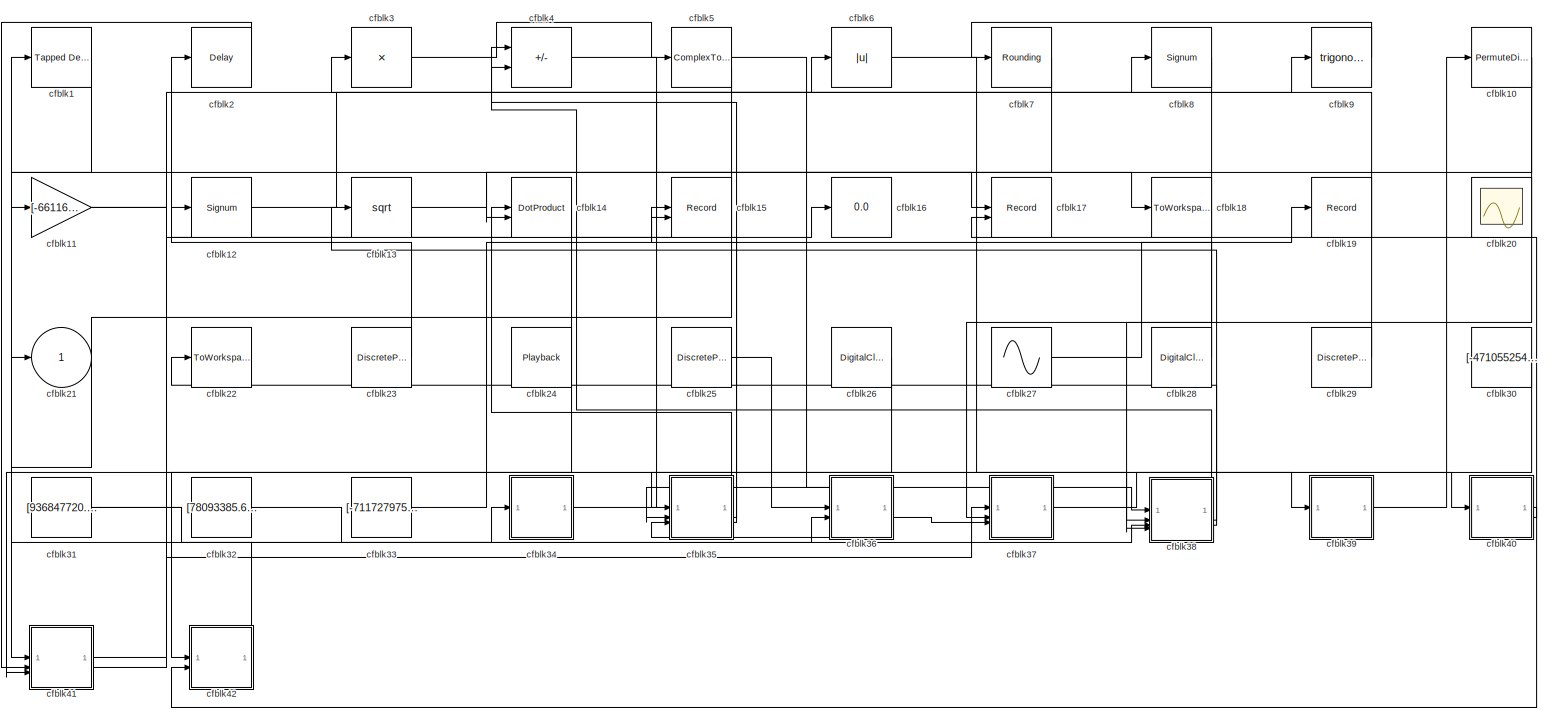
[diagram: root canvas - part 1/1, most of the canvas]
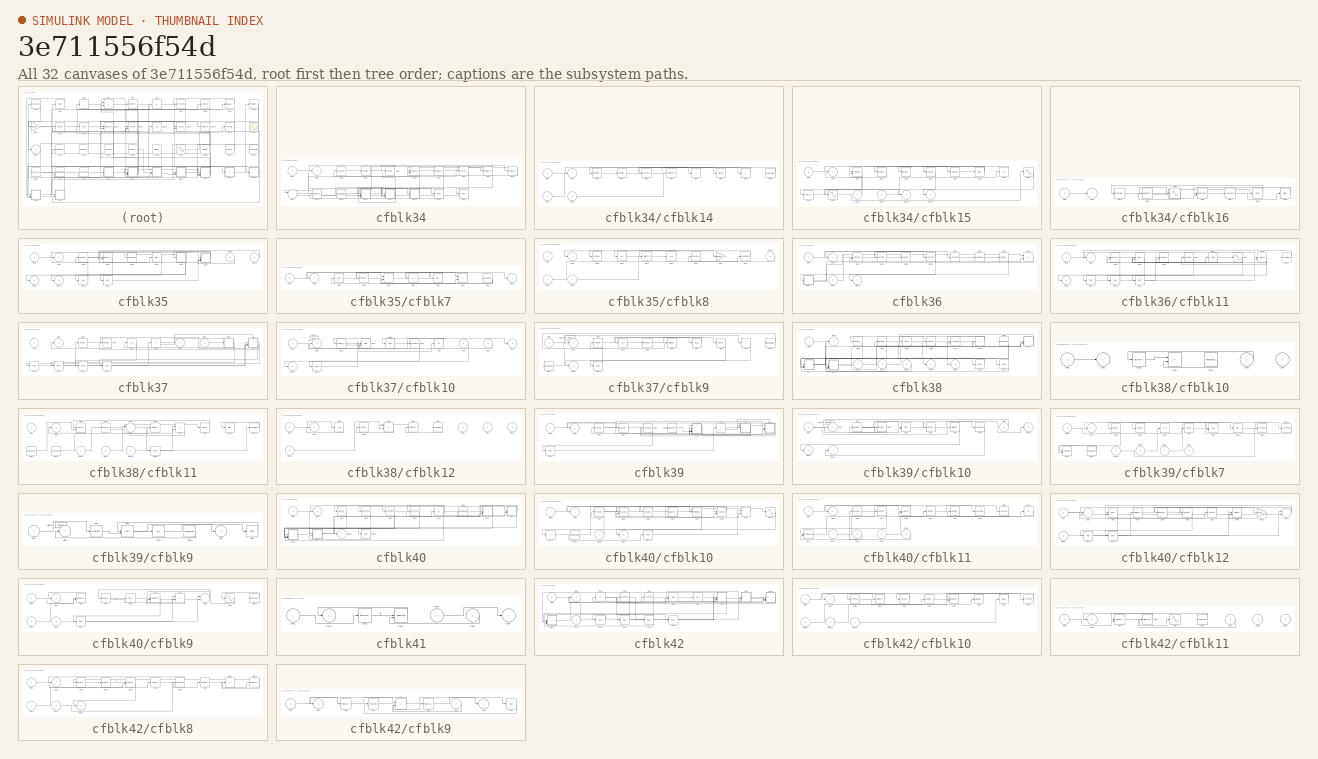
[diagram: thumbnail index - all 32 canvases of the model, root first then tree order]
MODEL slx_3e711556f54d
KIND model
CONFIG AbsTol = auto
CONFIG EnableMultiTasking = off
CONFIG FixedStep = auto
CONFIG MaxStep = auto
CONFIG MinStep = auto
CONFIG RelTol = 1e-3
CONFIG SampleTimeConstraint = Unconstrained
CONFIG SolverName = VariableStepAuto
CONFIG StartTime = 0.0
CONFIG StopTime = 10.0
BLOCK [Reference] cfblk1  REF=simulink/Discrete/Tapped Delay
  SourceBlock = simulink/Discrete/Tapped Delay
  SourceType = Tapped Delay Line
BLOCK [PermuteDimensions] cfblk10
BLOCK [Gain] cfblk11
  Gain = [-661167338.582478]
BLOCK [Signum] cfblk12
BLOCK [Sqrt] cfblk13
BLOCK [DotProduct] cfblk14
  OutDataTypeStr = Inherit: Inherit via internal rule
BLOCK [Record] cfblk15
  CompatibilityTag = XY
  FileSettingsInternal = {"entries":[{"content":{"excelSettings":{"content":{},"type":"Streamout.ExcelSettings"}},"type":"Streamout.FileSettingStorage","uuid":""}],"packageUris":["http:\/\/schema.mathworks.com\/mf0\/streamout_blocks\/R2020a"],"version":"1.0"}  <repeated x3 — deduplicated; at blocks: cfblk15, cfblk17, cfblk19>
  Layout = [1 1]
  SignalsInternal = {"entries":[{"content":{"signals":[{"content":{"blockPath":[],"dimensions":[1],"domain":"","lineColor":"#a2142f","plots":[1],"port":1,"sid":[""],"signalID":9076,"signalName":"cfblk33"},"type":"RecordBlkView.Signal","uuid":""},{"content":{"blockPath":[],"dimensions":[1],"domain":"","lineColor":"#139fff","plots":[1],"port":2,"sid":[""],"signalID":9080,"signalName":"cfblk28"},"type":"RecordBlkView.Si...<+162ch>
  VisualizationBindings = {"xyplotplugin":{"info":[{"series":[{"bindingParametersList":[{"parameter":"X-Axis","signalID":9076,"signalName":"cfblk33"},{"parameter":"Y-Axis","signalID":9080,"signalName":"cfblk28"}],"seriesID":24323}],"subplotID":1}]}}
BLOCK [Display] cfblk16
  Decimation = 1
BLOCK [Record] cfblk17
  CompatibilityTag = XY
  Layout = [1 1]
  SignalsInternal = {"entries":[{"content":{"signals":[{"content":{"blockPath":[],"dimensions":[1,1],"domain":"","lineColor":"#a2142f","plots":[1],"port":1,"sid":[""],"signalID":9064,"signalName":"cfblk13"},"type":"RecordBlkView.Signal","uuid":""},{"content":{"blockPath":[],"dimensions":[1],"domain":"","lineColor":"#139fff","plots":[1],"port":2,"sid":[""],"signalID":9068,"signalName":"cfblk40:2"},"type":"RecordBlkVie...<+166ch>
  VisualizationBindings = {"xyplotplugin":{"info":[{"series":[{"bindingParametersList":[{"parameter":"X-Axis","signalID":9064,"signalName":"cfblk13"},{"parameter":"Y-Axis","signalID":9068,"signalName":"cfblk40:2"}],"seriesID":10880}],"subplotID":1}]}}
BLOCK [ToWorkspace] cfblk18
  FixptAsFi = on
  MaxDataPoints = inf
  SampleTime = -1
  SaveFormat = Timeseries
  VariableName = fnljowx
BLOCK [Record] cfblk19
  SignalsInternal = {"entries":[{"content":{"signals":[{"content":{"blockPath":[],"dimensions":[1],"domain":"","lineColor":"#0072bd","plots":[1],"port":1,"sid":[""],"signalID":9072,"signalName":"cfblk27"},"type":"RecordBlkView.Signal","uuid":""}]},"type":"RecordBlkView.InputSignals","uuid":""}],"packageUris":["http:\/\/schema.mathworks.com\/mf0\/streamout_blocks\/R2020a"],"version":"1.0"}
  VisualizationBindings = {"sparklinesplugin":{"info":[{"bindingParametersList":[],"subplotID":1}]}}
BLOCK [Delay] cfblk2
  InputPortMap = u0
  SampleTime = 1
BLOCK [Scope] cfblk20
  Floating = on
  NumInputPorts = 1
BLOCK [Outport] cfblk21
BLOCK [ToWorkspace] cfblk22
  FixptAsFi = on
  MaxDataPoints = inf
  SampleTime = -1
  SaveFormat = Timeseries
  VariableName = ipofnvf
BLOCK [DiscretePulseGenerator] cfblk23
  Amplitude = [489892371.667250]
  Period = [76053043.640460]
  PhaseDelay = [5.000000]
  PulseType = Time based
  PulseWidth = 5
BLOCK [Playback] cfblk24
  NumPorts = 0
  PartName = d68867df-50f9-4361-9956-652af25b3d46
BLOCK [DiscretePulseGenerator] cfblk25
  Amplitude = [-460172725.140259]
  Period = [3062453.616618]
  PhaseDelay = [9.000000]
  PulseType = Time based
  PulseWidth = 5
BLOCK [DigitalClock] cfblk26
BLOCK [Sin] cfblk27
  Amplitude = [935071433.101170]
  Bias = [937723856.864569]
  SampleTime = 0
BLOCK [DigitalClock] cfblk28
BLOCK [DiscretePulseGenerator] cfblk29
  Amplitude = [587874793.420624]
  Period = [75210868.274375]
  PhaseDelay = [2.000000]
  PulseType = Time based
  PulseWidth = 5
BLOCK [Product] cfblk3
  Inputs = *
BLOCK [Constant] cfblk30
  SampleTime = 1
  Value = [-471055254.722410]
BLOCK [Constant] cfblk31
  SampleTime = 1
  Value = [936847720.148109]
BLOCK [Constant] cfblk32
  SampleTime = 1
  Value = [78093385.671961]
BLOCK [Constant] cfblk33
  SampleTime = 1
  Value = [-711727975.051186]
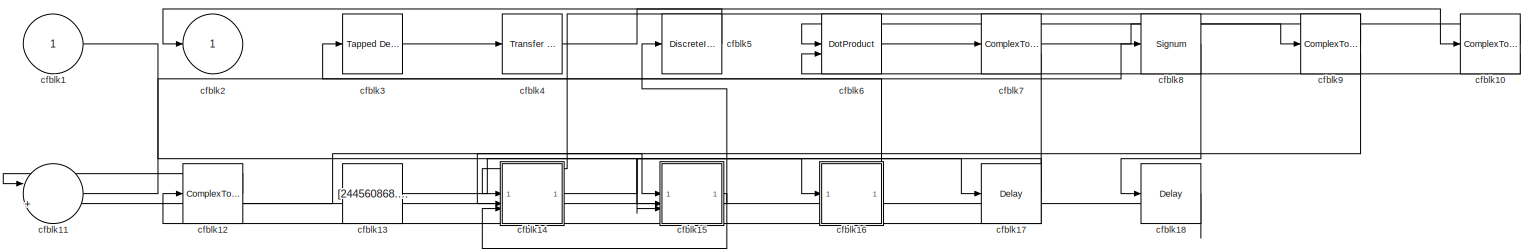
[diagram: cfblk34 - part 1/1, most of the canvas]
BLOCK [SubSystem] cfblk34
BLOCK [Inport] cfblk34/cfblk1
BLOCK [ComplexToMagnitudeAngle] cfblk34/cfblk10
BLOCK [Sum] cfblk34/cfblk11
  Inputs = |++
BLOCK [ComplexToMagnitudeAngle] cfblk34/cfblk12
BLOCK [Constant] cfblk34/cfblk13
  SampleTime = 1
  Value = [244560868.257482]
BLOCK [SubSystem] cfblk34/cfblk14
BLOCK [Inport] cfblk34/cfblk14/cfblk1
BLOCK [Constant] cfblk34/cfblk14/cfblk10
  SampleTime = 1
  Value = [221604053.392651]
BLOCK [Inport] cfblk34/cfblk14/cfblk11
  Port = 2
BLOCK [Inport] cfblk34/cfblk14/cfblk12
  Port = 3
BLOCK [Outport] cfblk34/cfblk14/cfblk2
BLOCK [DiscreteStateSpace] cfblk34/cfblk14/cfblk3
BLOCK [DiscreteIntegrator] cfblk34/cfblk14/cfblk4
  ICPrevOutput = DiscIntNeverNeededParam
  ICPrevScaledInput = DiscIntNeverNeededParam
  InitialConditionSetting = Auto
BLOCK [Squeeze] cfblk34/cfblk14/cfblk5
BLOCK [ComplexToRealImag] cfblk34/cfblk14/cfblk6
BLOCK [Sum] cfblk34/cfblk14/cfblk7
  IconShape = rectangular
  Inputs = +
BLOCK [MinMax] cfblk34/cfblk14/cfblk8
BLOCK [Sum] cfblk34/cfblk14/cfblk9
  IconShape = rectangular
  Inputs = +
BLOCK [SubSystem] cfblk34/cfblk15
BLOCK [Inport] cfblk34/cfblk15/cfblk1
BLOCK [Sin] cfblk34/cfblk15/cfblk10
  SampleTime = 0
  TimeSource = Use external signal
BLOCK [Signum] cfblk34/cfblk15/cfblk11
BLOCK [Sin] cfblk34/cfblk15/cfblk12
  SampleTime = 0
  TimeSource = Use external signal
BLOCK [Inport] cfblk34/cfblk15/cfblk13
  Port = 2
BLOCK [Inport] cfblk34/cfblk15/cfblk14
  Port = 3
BLOCK [Outport] cfblk34/cfblk15/cfblk15
  Port = 2
BLOCK [Outport] cfblk34/cfblk15/cfblk16
  Port = 3
BLOCK [Outport] cfblk34/cfblk15/cfblk2
BLOCK [Reference] cfblk34/cfblk15/cfblk3  REF=slpidlib/PID Controller (2DOF)
  LibrarySourceBlock = simulink/Discrete/Discrete PID Controller (2DOF)
  SourceBlock = slpidlib/PID Controller (2DOF)
  SourceType = PID 2dof
BLOCK [DiscreteFir] cfblk34/cfblk15/cfblk4
  InputPortMap = u0
  OutputPortMap = o0
  SampleTime = 1
BLOCK [DiscreteZeroPole] cfblk34/cfblk15/cfblk5
  Gain = 1
  Poles = [0 0.5]
BLOCK [Squeeze] cfblk34/cfblk15/cfblk6
BLOCK [Math] cfblk34/cfblk15/cfblk7
  Operator = square
BLOCK [Bias] cfblk34/cfblk15/cfblk8
  Bias = [-424058401.541355]
  SaturateOnIntegerOverflow = off
BLOCK [Abs] cfblk34/cfblk15/cfblk9
  SaturateOnIntegerOverflow = off
BLOCK [SubSystem] cfblk34/cfblk16
BLOCK [Inport] cfblk34/cfblk16/cfblk1
BLOCK [Outport] cfblk34/cfblk16/cfblk2
BLOCK [DiscreteIntegrator] cfblk34/cfblk16/cfblk3
  ICPrevOutput = DiscIntNeverNeededParam
  ICPrevScaledInput = DiscIntNeverNeededParam
  InitialConditionSetting = Auto
BLOCK [ComplexToMagnitudeAngle] cfblk34/cfblk16/cfblk4
BLOCK [Sin] cfblk34/cfblk16/cfblk5
  SampleTime = 0
  TimeSource = Use external signal
BLOCK [DotProduct] cfblk34/cfblk16/cfblk6
  OutDataTypeStr = Inherit: Inherit via internal rule
BLOCK [Reshape] cfblk34/cfblk16/cfblk7
BLOCK [Delay] cfblk34/cfblk16/cfblk8
  InputPortMap = u0
  SampleTime = 1
BLOCK [Delay] cfblk34/cfblk16/cfblk9
  InputPortMap = u0
  SampleTime = 1
BLOCK [Delay] cfblk34/cfblk17
  InputPortMap = u0
  SampleTime = 1
BLOCK [Delay] cfblk34/cfblk18
  InputPortMap = u0
  SampleTime = 1
BLOCK [Outport] cfblk34/cfblk2
BLOCK [Reference] cfblk34/cfblk3  REF=simulink/Discrete/Tapped Delay
  SourceBlock = simulink/Discrete/Tapped Delay
  SourceType = Tapped Delay Line
BLOCK [Reference] cfblk34/cfblk4  REF=simulink/Discrete/Transfer Fcn
First Order
  SourceBlock = simulink/Discrete/Transfer Fcn\nFirst Order
  SourceType = First Order Transfer Fcn
BLOCK [DiscreteIntegrator] cfblk34/cfblk5
  ICPrevOutput = DiscIntNeverNeededParam
  ICPrevScaledInput = DiscIntNeverNeededParam
  InitialConditionSetting = Auto
BLOCK [DotProduct] cfblk34/cfblk6
  OutDataTypeStr = Inherit: Inherit via internal rule
BLOCK [ComplexToMagnitudeAngle] cfblk34/cfblk7
BLOCK [Signum] cfblk34/cfblk8
BLOCK [ComplexToMagnitudeAngle] cfblk34/cfblk9
BLOCK [SubSystem] cfblk35
BLOCK [Inport] cfblk35/cfblk1
BLOCK [Inport] cfblk35/cfblk10
  Port = 3
BLOCK [Outport] cfblk35/cfblk11
  Port = 2
BLOCK [Outport] cfblk35/cfblk12
  Port = 3
BLOCK [Delay] cfblk35/cfblk13
  InputPortMap = u0
  SampleTime = 1
BLOCK [Delay] cfblk35/cfblk14
  InputPortMap = u0
  SampleTime = 1
BLOCK [Outport] cfblk35/cfblk2
BLOCK [DiscreteFilter] cfblk35/cfblk3
  InputPortMap = u0
  SampleTime = 1
BLOCK [Reference] cfblk35/cfblk4  REF=simulink/Math
Operations/MinMax
Running
Resettable
  SourceBlock = simulink/Math\nOperations/MinMax\nRunning\nResettable
  SourceType = MinMax Running Resettable
BLOCK [UnaryMinus] cfblk35/cfblk5
BLOCK [Bias] cfblk35/cfblk6
  Bias = [386240983.709337]
  SaturateOnIntegerOverflow = off
BLOCK [SubSystem] cfblk35/cfblk7
BLOCK [Inport] cfblk35/cfblk7/cfblk1
BLOCK [Outport] cfblk35/cfblk7/cfblk10
  Port = 2
BLOCK [Outport] cfblk35/cfblk7/cfblk2
BLOCK [Delay] cfblk35/cfblk7/cfblk3
  InputPortMap = u0
  SampleTime = 1
BLOCK [Reference] cfblk35/cfblk7/cfblk4  REF=slpidlib/PID Controller
  LibrarySourceBlock = simulink/Discrete/Discrete PID Controller
  SourceBlock = slpidlib/PID Controller
  SourceType = PID 1dof
BLOCK [Product] cfblk35/cfblk7/cfblk5
  Inputs = **
BLOCK [Abs] cfblk35/cfblk7/cfblk6
  SaturateOnIntegerOverflow = off
BLOCK [Sqrt] cfblk35/cfblk7/cfblk7
BLOCK [Product] cfblk35/cfblk7/cfblk8
BLOCK [Constant] cfblk35/cfblk7/cfblk9
  SampleTime = 1
  Value = [44037636.757688]
BLOCK [SubSystem] cfblk35/cfblk8
BLOCK [Inport] cfblk35/cfblk8/cfblk1
BLOCK [Inport] cfblk35/cfblk8/cfblk10
  Port = 2
BLOCK [Inport] cfblk35/cfblk8/cfblk11
  Port = 3
BLOCK [Inport] cfblk35/cfblk8/cfblk12
  Port = 4
BLOCK [Outport] cfblk35/cfblk8/cfblk2
BLOCK [DiscreteIntegrator] cfblk35/cfblk8/cfblk3
  ICPrevOutput = DiscIntNeverNeededParam
  ICPrevScaledInput = DiscIntNeverNeededParam
  InitialConditionSetting = Auto
BLOCK [UnitDelay] cfblk35/cfblk8/cfblk4
  HasFrameUpgradeWarning = on
BLOCK [Reference] cfblk35/cfblk8/cfblk5  REF=simulink/Discrete/Difference
  SourceBlock = simulink/Discrete/Difference
  SourceType = Difference
BLOCK [UnitDelay] cfblk35/cfblk8/cfblk6
  HasFrameUpgradeWarning = on
BLOCK [Reference] cfblk35/cfblk8/cfblk7  REF=simulink/Discrete/Tapped Delay
  SourceBlock = simulink/Discrete/Tapped Delay
  SourceType = Tapped Delay Line
BLOCK [Gain] cfblk35/cfblk8/cfblk8
  Gain = [392964915.501462]
BLOCK [UnaryMinus] cfblk35/cfblk8/cfblk9
BLOCK [Inport] cfblk35/cfblk9
  Port = 2
BLOCK [SubSystem] cfblk36
BLOCK [Inport] cfblk36/cfblk1
BLOCK [Sum] cfblk36/cfblk10
  IconShape = rectangular
  Inputs = +-
BLOCK [SubSystem] cfblk36/cfblk11
BLOCK [Inport] cfblk36/cfblk11/cfblk1
BLOCK [Constant] cfblk36/cfblk11/cfblk10
  SampleTime = 1
  Value = [117344583.950169]
BLOCK [Outport] cfblk36/cfblk11/cfblk11
  Port = 2
BLOCK [Delay] cfblk36/cfblk11/cfblk12
  InputPortMap = u0
  SampleTime = 1
BLOCK [Delay] cfblk36/cfblk11/cfblk13
  InputPortMap = u0
  SampleTime = 1
BLOCK [Delay] cfblk36/cfblk11/cfblk14
  InputPortMap = u0
  SampleTime = 1
BLOCK [Outport] cfblk36/cfblk11/cfblk2
BLOCK [PropagationDelay] cfblk36/cfblk11/cfblk3
  SampleTime = 1
BLOCK [Delay] cfblk36/cfblk11/cfblk4
  DelayLengthSource = Input port
  InputPortMap = u0,p1
  SampleTime = 1
BLOCK [PropagationDelay] cfblk36/cfblk11/cfblk5
  SampleTime = 1
BLOCK [DiscreteZeroPole] cfblk36/cfblk11/cfblk6
  Gain = 1
  Poles = [0 0.5]
BLOCK [Sqrt] cfblk36/cfblk11/cfblk7
  AlgorithmType = Newton-Raphson
  Operator = rSqrt
BLOCK [Sin] cfblk36/cfblk11/cfblk8
  SampleTime = 0
  TimeSource = Use external signal
BLOCK [MinMax] cfblk36/cfblk11/cfblk9
  Function = max
  Inputs = 2
BLOCK [Inport] cfblk36/cfblk12
  Port = 2
BLOCK [Outport] cfblk36/cfblk13
  Port = 2
BLOCK [Outport] cfblk36/cfblk2
BLOCK [Reference] cfblk36/cfblk3  REF=slpidlib/PID Controller (2DOF)
  LibrarySourceBlock = simulink/Discrete/Discrete PID Controller (2DOF)
  SourceBlock = slpidlib/PID Controller (2DOF)
  SourceType = PID 2dof
BLOCK [DiscreteIntegrator] cfblk36/cfblk4
  ICPrevOutput = DiscIntNeverNeededParam
  ICPrevScaledInput = DiscIntNeverNeededParam
  InitialConditionSetting = Auto
BLOCK [DiscreteIntegrator] cfblk36/cfblk5
  ICPrevOutput = DiscIntNeverNeededParam
  ICPrevScaledInput = DiscIntNeverNeededParam
  InitialConditionSetting = Auto
BLOCK [Rounding] cfblk36/cfblk6
BLOCK [Rounding] cfblk36/cfblk7
BLOCK [UnaryMinus] cfblk36/cfblk8
BLOCK [Reference] cfblk36/cfblk9  REF=simulink/Math
Operations/Slider
Gain
  SourceBlock = simulink/Math\nOperations/Slider\nGain
  SourceType = Slider Gain
BLOCK [SubSystem] cfblk37
BLOCK [Inport] cfblk37/cfblk1
BLOCK [SubSystem] cfblk37/cfblk10
  TreatAsAtomicUnit = on
BLOCK [ActionPort] cfblk37/cfblk10/Action Port
  ActionPortLabel = else
BLOCK [Inport] cfblk37/cfblk10/cfblk1
BLOCK [Outport] cfblk37/cfblk10/cfblk10
  Port = 2
BLOCK [Outport] cfblk37/cfblk10/cfblk11
  Port = 3
BLOCK [Delay] cfblk37/cfblk10/cfblk12
  InputPortMap = u0
BLOCK [Outport] cfblk37/cfblk10/cfblk2
BLOCK [ComplexToRealImag] cfblk37/cfblk10/cfblk3
BLOCK [Math] cfblk37/cfblk10/cfblk4
  Operator = pow
BLOCK [Sqrt] cfblk37/cfblk10/cfblk5
  AlgorithmType = Newton-Raphson
  Operator = rSqrt
BLOCK [UnaryMinus] cfblk37/cfblk10/cfblk6
BLOCK [Abs] cfblk37/cfblk10/cfblk7
  SaturateOnIntegerOverflow = off
BLOCK [Inport] cfblk37/cfblk10/cfblk8
  Port = 2
BLOCK [Inport] cfblk37/cfblk10/cfblk9
  Port = 3
BLOCK [Delay] cfblk37/cfblk11
  InputPortMap = u0
  SampleTime = 1
BLOCK [Delay] cfblk37/cfblk12
  InputPortMap = u0
  SampleTime = 1
BLOCK [Delay] cfblk37/cfblk13
  InputPortMap = u0
  SampleTime = 1
BLOCK [Delay] cfblk37/cfblk14
  InputPortMap = u0
  SampleTime = 1
BLOCK [Outport] cfblk37/cfblk2
BLOCK [Reference] cfblk37/cfblk3  REF=simulink/Discrete/Transfer Fcn
First Order
  SourceBlock = simulink/Discrete/Transfer Fcn\nFirst Order
  SourceType = First Order Transfer Fcn
BLOCK [DiscreteStateSpace] cfblk37/cfblk4
BLOCK [UnitDelay] cfblk37/cfblk5
  HasFrameUpgradeWarning = on
BLOCK [If] cfblk37/cfblk6
  IfExpression = u1 >= 0
  SampleTime = 1
BLOCK [Inport] cfblk37/cfblk7
  Port = 2
BLOCK [Inport] cfblk37/cfblk8
  Port = 3
BLOCK [SubSystem] cfblk37/cfblk9
  TreatAsAtomicUnit = on
BLOCK [ActionPort] cfblk37/cfblk9/Action Port
  ActionPortLabel = if(u1 >= 0)
BLOCK [Inport] cfblk37/cfblk9/cfblk1
BLOCK [Constant] cfblk37/cfblk9/cfblk10
  SampleTime = 1
  Value = [198665553.390819]
BLOCK [Constant] cfblk37/cfblk9/cfblk11
  SampleTime = 1
  Value = [602282066.424837]
BLOCK [Outport] cfblk37/cfblk9/cfblk12
  Port = 2
BLOCK [Delay] cfblk37/cfblk9/cfblk13
  InputPortMap = u0
BLOCK [Outport] cfblk37/cfblk9/cfblk2
BLOCK [Reference] cfblk37/cfblk9/cfblk3  REF=simulink/Discrete/Transfer Fcn
Real Zero
  SourceBlock = simulink/Discrete/Transfer Fcn\nReal Zero
  SourceType = Transfer Fcn Real Zero
BLOCK [UnitDelay] cfblk37/cfblk9/cfblk4
  HasFrameUpgradeWarning = on
  SampleTime = -1
BLOCK [DiscreteStateSpace] cfblk37/cfblk9/cfblk5
  SampleTime = -1
BLOCK [Reference] cfblk37/cfblk9/cfblk6  REF=simulink/Math
Operations/Slider
Gain
  SourceBlock = simulink/Math\nOperations/Slider\nGain
  SourceType = Slider Gain
BLOCK [Math] cfblk37/cfblk9/cfblk7
  Operator = 10^u
BLOCK [Signum] cfblk37/cfblk9/cfblk8
BLOCK [Sum] cfblk37/cfblk9/cfblk9
  IconShape = rectangular
  Inputs = +
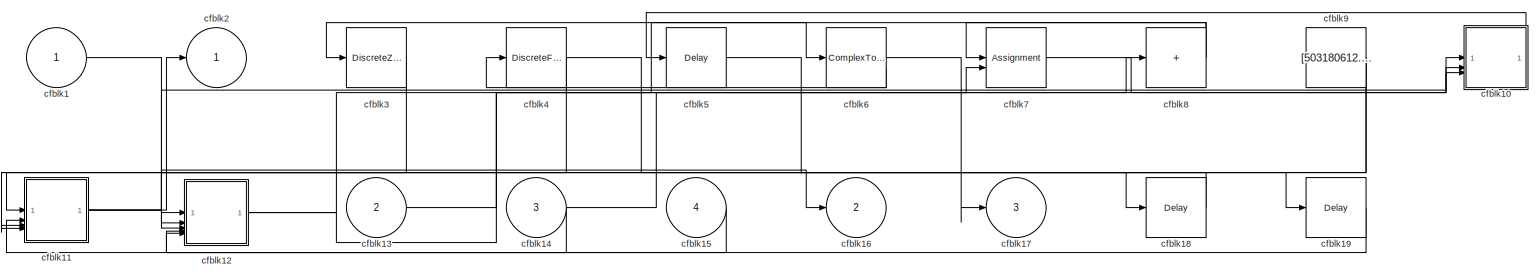
[diagram: cfblk38 - part 1/1, most of the canvas]
BLOCK [SubSystem] cfblk38
BLOCK [Inport] cfblk38/cfblk1
BLOCK [SubSystem] cfblk38/cfblk10
BLOCK [Inport] cfblk38/cfblk10/cfblk1
BLOCK [Outport] cfblk38/cfblk10/cfblk2
BLOCK [DiscreteTransferFcn] cfblk38/cfblk10/cfblk3
  InputPortMap = u0
  SampleTime = 1
BLOCK [Sum] cfblk38/cfblk10/cfblk4
  IconShape = rectangular
BLOCK [Constant] cfblk38/cfblk10/cfblk5
  SampleTime = 1
  Value = [-405361042.762799]
BLOCK [Inport] cfblk38/cfblk10/cfblk6
  Port = 2
BLOCK [Inport] cfblk38/cfblk10/cfblk7
  Port = 3
BLOCK [SubSystem] cfblk38/cfblk11
BLOCK [Inport] cfblk38/cfblk11/cfblk1
BLOCK [UnaryMinus] cfblk38/cfblk11/cfblk10
BLOCK [Constant] cfblk38/cfblk11/cfblk11
  SampleTime = 1
  Value = [770578267.613471]
BLOCK [Constant] cfblk38/cfblk11/cfblk12
  SampleTime = 1
  Value = [-324757839.420236]
BLOCK [Inport] cfblk38/cfblk11/cfblk13
  Port = 2
BLOCK [Inport] cfblk38/cfblk11/cfblk14
  Port = 3
BLOCK [Inport] cfblk38/cfblk11/cfblk15
  Port = 4
BLOCK [Delay] cfblk38/cfblk11/cfblk16
  InputPortMap = u0
  SampleTime = 1
BLOCK [Outport] cfblk38/cfblk11/cfblk2
BLOCK [Reference] cfblk38/cfblk11/cfblk3  REF=slpidlib/PID Controller (2DOF)
  LibrarySourceBlock = simulink/Discrete/Discrete PID Controller (2DOF)
  SourceBlock = slpidlib/PID Controller (2DOF)
  SourceType = PID 2dof
BLOCK [ComplexToMagnitudeAngle] cfblk38/cfblk11/cfblk4
BLOCK [Sum] cfblk38/cfblk11/cfblk5
  Inputs = |++
BLOCK [Reference] cfblk38/cfblk11/cfblk6  REF=simulink/Math
Operations/Slider
Gain
  SourceBlock = simulink/Math\nOperations/Slider\nGain
  SourceType = Slider Gain
BLOCK [Product] cfblk38/cfblk11/cfblk7
  Inputs = **
BLOCK [Signum] cfblk38/cfblk11/cfblk8
BLOCK [Bias] cfblk38/cfblk11/cfblk9
  Bias = [479627434.018978]
  SaturateOnIntegerOverflow = off
BLOCK [SubSystem] cfblk38/cfblk12
BLOCK [Inport] cfblk38/cfblk12/cfblk1
BLOCK [Inport] cfblk38/cfblk12/cfblk10
  Port = 4
BLOCK [Inport] cfblk38/cfblk12/cfblk11
  Port = 5
BLOCK [Outport] cfblk38/cfblk12/cfblk2
BLOCK [UnitDelay] cfblk38/cfblk12/cfblk3
  HasFrameUpgradeWarning = on
BLOCK [Reference] cfblk38/cfblk12/cfblk4  REF=simulink/Discrete/Transfer Fcn
Lead or Lag
  SourceBlock = simulink/Discrete/Transfer Fcn\nLead or Lag
  SourceType = Lead or Lag Compensator
BLOCK [Sum] cfblk38/cfblk12/cfblk5
  IconShape = rectangular
  Inputs = +-
BLOCK [ComplexToRealImag] cfblk38/cfblk12/cfblk6
BLOCK [Constant] cfblk38/cfblk12/cfblk7
  SampleTime = 1
  Value = [673280667.633138]
BLOCK [Inport] cfblk38/cfblk12/cfblk8
  Port = 2
BLOCK [Inport] cfblk38/cfblk12/cfblk9
  Port = 3
BLOCK [Inport] cfblk38/cfblk13
  Port = 2
BLOCK [Inport] cfblk38/cfblk14
  Port = 3
BLOCK [Inport] cfblk38/cfblk15
  Port = 4
BLOCK [Outport] cfblk38/cfblk16
  Port = 2
BLOCK [Outport] cfblk38/cfblk17
  Port = 3
BLOCK [Delay] cfblk38/cfblk18
  InputPortMap = u0
  SampleTime = 1
BLOCK [Delay] cfblk38/cfblk19
  InputPortMap = u0
  SampleTime = 1
BLOCK [Outport] cfblk38/cfblk2
BLOCK [DiscreteZeroPole] cfblk38/cfblk3
  Gain = 1
  Poles = [0 0.5]
BLOCK [DiscreteFir] cfblk38/cfblk4
  InputPortMap = u0
  OutputPortMap = o0
  SampleTime = 1
BLOCK [Delay] cfblk38/cfblk5
  InputPortMap = u0
  SampleTime = 1
BLOCK [ComplexToMagnitudeAngle] cfblk38/cfblk6
BLOCK [Assignment] cfblk38/cfblk7
  DiagnosticForDimensions = Warning
  IndexOptions = Index vector (dialog)
  Indices = 1
  OutputSizes = 1
BLOCK [Sum] cfblk38/cfblk8
  IconShape = rectangular
  Inputs = +
BLOCK [Constant] cfblk38/cfblk9
  SampleTime = 1
  Value = [503180612.932253]
BLOCK [SubSystem] cfblk39
BLOCK [Inport] cfblk39/cfblk1
BLOCK [SubSystem] cfblk39/cfblk10
  TreatAsAtomicUnit = on
BLOCK [ActionPort] cfblk39/cfblk10/Action Port
  ActionPortLabel = else
BLOCK [Inport] cfblk39/cfblk10/cfblk1
BLOCK [Outport] cfblk39/cfblk10/cfblk10
  Port = 2
BLOCK [Outport] cfblk39/cfblk10/cfblk11
  Port = 3
BLOCK [Outport] cfblk39/cfblk10/cfblk12
  Port = 4
BLOCK [Outport] cfblk39/cfblk10/cfblk2
BLOCK [DiscreteZeroPole] cfblk39/cfblk10/cfblk3
  Gain = 1
  Poles = [0 0.5]
  SampleTime = -1
BLOCK [DiscreteZeroPole] cfblk39/cfblk10/cfblk4
  Gain = 1
  Poles = [0 0.5]
  SampleTime = -1
BLOCK [Delay] cfblk39/cfblk10/cfblk5
  DelayLengthSource = Input port
  InputPortMap = u0,p1
BLOCK [Math] cfblk39/cfblk10/cfblk6
  Operator = transpose
BLOCK [Reference] cfblk39/cfblk10/cfblk7  REF=simulink/Math
Operations/Slider
Gain
  SourceBlock = simulink/Math\nOperations/Slider\nGain
  SourceType = Slider Gain
BLOCK [UnaryMinus] cfblk39/cfblk10/cfblk8
BLOCK [Inport] cfblk39/cfblk10/cfblk9
  Port = 2
BLOCK [Delay] cfblk39/cfblk11
  InputPortMap = u0
  SampleTime = 1
BLOCK [Outport] cfblk39/cfblk2
BLOCK [Reference] cfblk39/cfblk3  REF=simulink/Discrete/Transfer Fcn
Lead or Lag
  SourceBlock = simulink/Discrete/Transfer Fcn\nLead or Lag
  SourceType = Lead or Lag Compensator
BLOCK [DiscreteIntegrator] cfblk39/cfblk4
  ICPrevOutput = DiscIntNeverNeededParam
  ICPrevScaledInput = DiscIntNeverNeededParam
  InitialConditionSetting = Auto
BLOCK [Rounding] cfblk39/cfblk5
BLOCK [Constant] cfblk39/cfblk6
  SampleTime = 1
  Value = [336616474.265442]
BLOCK [SubSystem] cfblk39/cfblk7
BLOCK [Inport] cfblk39/cfblk7/cfblk1
BLOCK [Rounding] cfblk39/cfblk7/cfblk10
BLOCK [Assignment] cfblk39/cfblk7/cfblk11
  DiagnosticForDimensions = Warning
  IndexOptions = Index vector (dialog)
  Indices = 1
  OutputSizes = 1
BLOCK [Constant] cfblk39/cfblk7/cfblk12
  SampleTime = 1
  Value = [176706282.426065]
BLOCK [Inport] cfblk39/cfblk7/cfblk13
  Port = 2
BLOCK [Inport] cfblk39/cfblk7/cfblk14
  Port = 3
BLOCK [Inport] cfblk39/cfblk7/cfblk15
  Port = 4
BLOCK [Inport] cfblk39/cfblk7/cfblk16
  Port = 5
BLOCK [Outport] cfblk39/cfblk7/cfblk2
BLOCK [DiscreteZeroPole] cfblk39/cfblk7/cfblk3
  Gain = 1
  Poles = [0 0.5]
BLOCK [DiscreteIntegrator] cfblk39/cfblk7/cfblk4
  ICPrevOutput = DiscIntNeverNeededParam
  ICPrevScaledInput = DiscIntNeverNeededParam
  InitialConditionSetting = Auto
BLOCK [UnitDelay] cfblk39/cfblk7/cfblk5
  HasFrameUpgradeWarning = on
BLOCK [MinMax] cfblk39/cfblk7/cfblk6
BLOCK [Math] cfblk39/cfblk7/cfblk7
  Operator = rem
BLOCK [Bias] cfblk39/cfblk7/cfblk8
  Bias = [-26926220.618359]
  SaturateOnIntegerOverflow = off
BLOCK [Rounding] cfblk39/cfblk7/cfblk9
BLOCK [If] cfblk39/cfblk8
  IfExpression = u1 >= 0
  SampleTime = 1
BLOCK [SubSystem] cfblk39/cfblk9
  TreatAsAtomicUnit = on
BLOCK [ActionPort] cfblk39/cfblk9/Action Port
  ActionPortLabel = if(u1 >= 0)
BLOCK [Inport] cfblk39/cfblk9/cfblk1
BLOCK [Outport] cfblk39/cfblk9/cfblk2
BLOCK [Reference] cfblk39/cfblk9/cfblk3  REF=simulink/Discrete/Tapped Delay
  SourceBlock = simulink/Discrete/Tapped Delay
  SourceType = Tapped Delay Line
BLOCK [Delay] cfblk39/cfblk9/cfblk4
  InputPortMap = u0,e6
  ShowEnablePort = on
BLOCK [UnitDelay] cfblk39/cfblk9/cfblk5
  HasFrameUpgradeWarning = on
  SampleTime = -1
BLOCK [Constant] cfblk39/cfblk9/cfblk6
  SampleTime = 1
  Value = [-80840169.430928]
BLOCK [Outport] cfblk39/cfblk9/cfblk7
  Port = 2
BLOCK [Delay] cfblk39/cfblk9/cfblk8
  InputPortMap = u0
BLOCK [Sum] cfblk4
  IconShape = rectangular
  Inputs = --
BLOCK [SubSystem] cfblk40
BLOCK [Inport] cfblk40/cfblk1
BLOCK [SubSystem] cfblk40/cfblk10
BLOCK [Inport] cfblk40/cfblk10/cfblk1
BLOCK [Sin] cfblk40/cfblk10/cfblk10
  SampleTime = 0
  TimeSource = Use external signal
BLOCK [Sum] cfblk40/cfblk10/cfblk11
  IconShape = rectangular
  Inputs = +
BLOCK [Constant] cfblk40/cfblk10/cfblk12
  SampleTime = 1
  Value = [-798254338.833526]
BLOCK [Inport] cfblk40/cfblk10/cfblk13
  Port = 2
BLOCK [Outport] cfblk40/cfblk10/cfblk14
  Port = 2
BLOCK [Delay] cfblk40/cfblk10/cfblk15
  InputPortMap = u0
  SampleTime = 1
BLOCK [Outport] cfblk40/cfblk10/cfblk2
BLOCK [Reference] cfblk40/cfblk10/cfblk3  REF=simulink/Discrete/Transfer Fcn
Lead or Lag
  SourceBlock = simulink/Discrete/Transfer Fcn\nLead or Lag
  SourceType = Lead or Lag Compensator
BLOCK [PropagationDelay] cfblk40/cfblk10/cfblk4
  SampleTime = 1
BLOCK [DiscreteIntegrator] cfblk40/cfblk10/cfblk5
  ICPrevOutput = DiscIntNeverNeededParam
  ICPrevScaledInput = DiscIntNeverNeededParam
  InitialConditionSetting = Auto
BLOCK [ComplexToRealImag] cfblk40/cfblk10/cfblk6
BLOCK [PermuteDimensions] cfblk40/cfblk10/cfblk7
BLOCK [Assignment] cfblk40/cfblk10/cfblk8
  DiagnosticForDimensions = Warning
  IndexOptions = Index vector (dialog)
  Indices = 1
  OutputSizes = 1
BLOCK [Sum] cfblk40/cfblk10/cfblk9
  IconShape = rectangular
BLOCK [SubSystem] cfblk40/cfblk11
BLOCK [Inport] cfblk40/cfblk11/cfblk1
BLOCK [Abs] cfblk40/cfblk11/cfblk10
  SaturateOnIntegerOverflow = off
BLOCK [Assignment] cfblk40/cfblk11/cfblk11
  DiagnosticForDimensions = Warning
  IndexOptions = Index vector (dialog)
  Indices = 1
  OutputSizes = 1
BLOCK [Inport] cfblk40/cfblk11/cfblk12
  Port = 2
BLOCK [Inport] cfblk40/cfblk11/cfblk13
  Port = 3
BLOCK [Inport] cfblk40/cfblk11/cfblk14
  Port = 4
BLOCK [Inport] cfblk40/cfblk11/cfblk15
  Port = 5
BLOCK [Outport] cfblk40/cfblk11/cfblk2
BLOCK [DiscreteZeroPole] cfblk40/cfblk11/cfblk3
  Gain = 1
  Poles = [0 0.5]
BLOCK [Reference] cfblk40/cfblk11/cfblk4  REF=slpidlib/PID Controller
  LibrarySourceBlock = simulink/Discrete/Discrete PID Controller
  SourceBlock = slpidlib/PID Controller
  SourceType = PID 1dof
BLOCK [Reference] cfblk40/cfblk11/cfblk5  REF=slpidlib/PID Controller (2DOF)
  LibrarySourceBlock = simulink/Discrete/Discrete PID Controller (2DOF)
  SourceBlock = slpidlib/PID Controller (2DOF)
  SourceType = PID 2dof
BLOCK [Reference] cfblk40/cfblk11/cfblk6  REF=simulink/Discrete/Transfer Fcn
Lead or Lag
  SourceBlock = simulink/Discrete/Transfer Fcn\nLead or Lag
  SourceType = Lead or Lag Compensator
BLOCK [DiscreteStateSpace] cfblk40/cfblk11/cfblk7
BLOCK [Rounding] cfblk40/cfblk11/cfblk8
BLOCK [Reshape] cfblk40/cfblk11/cfblk9
BLOCK [SubSystem] cfblk40/cfblk12
BLOCK [Inport] cfblk40/cfblk12/cfblk1
BLOCK [Sum] cfblk40/cfblk12/cfblk10
  Inputs = |++
BLOCK [Inport] cfblk40/cfblk12/cfblk11
  Port = 2
BLOCK [Delay] cfblk40/cfblk12/cfblk12
  InputPortMap = u0
  SampleTime = 1
BLOCK [Delay] cfblk40/cfblk12/cfblk13
  InputPortMap = u0
  SampleTime = 1
BLOCK [Outport] cfblk40/cfblk12/cfblk2
BLOCK [Delay] cfblk40/cfblk12/cfblk3
  InputPortMap = u0,e6
  SampleTime = 1
  ShowEnablePort = on
BLOCK [Reference] cfblk40/cfblk12/cfblk4  REF=simulink/Discrete/Difference
  SourceBlock = simulink/Discrete/Difference
  SourceType = Difference
BLOCK [DiscreteFir] cfblk40/cfblk12/cfblk5
  InputPortMap = u0
  OutputPortMap = o0
  SampleTime = 1
BLOCK [DiscreteFir] cfblk40/cfblk12/cfblk6
  InputPortMap = u0
  OutputPortMap = o0
  SampleTime = 1
BLOCK [Reference] cfblk40/cfblk12/cfblk7  REF=simulink/Discrete/Transfer Fcn
First Order
  SourceBlock = simulink/Discrete/Transfer Fcn\nFirst Order
  SourceType = First Order Transfer Fcn
BLOCK [MinMax] cfblk40/cfblk12/cfblk8
  Function = max
  Inputs = 2
BLOCK [Gain] cfblk40/cfblk12/cfblk9
  Gain = [-962917492.866318]
BLOCK [Outport] cfblk40/cfblk13
  Port = 2
BLOCK [Delay] cfblk40/cfblk14
  InputPortMap = u0
  SampleTime = 1
BLOCK [Outport] cfblk40/cfblk2
BLOCK [Reference] cfblk40/cfblk3  REF=simulink/Discrete/Transfer Fcn
Lead or Lag
  SourceBlock = simulink/Discrete/Transfer Fcn\nLead or Lag
  SourceType = Lead or Lag Compensator
BLOCK [Reference] cfblk40/cfblk4  REF=simulink/Discrete/Tapped Delay
  SourceBlock = simulink/Discrete/Tapped Delay
  SourceType = Tapped Delay Line
BLOCK [Rounding] cfblk40/cfblk5
BLOCK [Reshape] cfblk40/cfblk6
BLOCK [Abs] cfblk40/cfblk7
  SaturateOnIntegerOverflow = off
BLOCK [Constant] cfblk40/cfblk8
  SampleTime = 1
  Value = [351009589.240475]
BLOCK [SubSystem] cfblk40/cfblk9
BLOCK [Inport] cfblk40/cfblk9/cfblk1
BLOCK [Constant] cfblk40/cfblk9/cfblk10
  SampleTime = 1
  Value = [297527341.713185]
BLOCK [Inport] cfblk40/cfblk9/cfblk11
  Port = 2
BLOCK [Inport] cfblk40/cfblk9/cfblk12
  Port = 3
BLOCK [Delay] cfblk40/cfblk9/cfblk13
  InputPortMap = u0
  SampleTime = 1
BLOCK [Outport] cfblk40/cfblk9/cfblk2
BLOCK [PropagationDelay] cfblk40/cfblk9/cfblk3
  SampleTime = 1
BLOCK [ComplexToMagnitudeAngle] cfblk40/cfblk9/cfblk4
BLOCK [Sqrt] cfblk40/cfblk9/cfblk5
  AlgorithmType = Newton-Raphson
  Operator = rSqrt
BLOCK [DotProduct] cfblk40/cfblk9/cfblk6
  OutDataTypeStr = Inherit: Inherit via internal rule
BLOCK [Product] cfblk40/cfblk9/cfblk7
BLOCK [Sum] cfblk40/cfblk9/cfblk8
  Inputs = |++
BLOCK [Sin] cfblk40/cfblk9/cfblk9
  SampleTime = 0
  TimeSource = Use external signal
BLOCK [SubSystem] cfblk41
BLOCK [Inport] cfblk41/cfblk1
BLOCK [Outport] cfblk41/cfblk2
BLOCK [DiscreteTransferFcn] cfblk41/cfblk3
  InputPortMap = u0
  SampleTime = 1
BLOCK [Assignment] cfblk41/cfblk4
  DiagnosticForDimensions = Warning
  IndexOptions = Index vector (dialog)
  Indices = 1
  OutputSizes = 1
BLOCK [Inport] cfblk41/cfblk5
  Port = 2
BLOCK [Inport] cfblk41/cfblk6
  Port = 3
BLOCK [Outport] cfblk41/cfblk7
  Port = 2
BLOCK [SubSystem] cfblk42
BLOCK [Inport] cfblk42/cfblk1
BLOCK [SubSystem] cfblk42/cfblk10
BLOCK [Inport] cfblk42/cfblk10/cfblk1
BLOCK [Reshape] cfblk42/cfblk10/cfblk10
BLOCK [Inport] cfblk42/cfblk10/cfblk11
  Port = 2
BLOCK [Inport] cfblk42/cfblk10/cfblk12
  Port = 3
BLOCK [Inport] cfblk42/cfblk10/cfblk13
  Port = 4
BLOCK [Outport] cfblk42/cfblk10/cfblk2
BLOCK [Reference] cfblk42/cfblk10/cfblk3  REF=simulink/Discrete/Tapped Delay
  SourceBlock = simulink/Discrete/Tapped Delay
  SourceType = Tapped Delay Line
BLOCK [Reference] cfblk42/cfblk10/cfblk4  REF=simulink/Discrete/Difference
  SourceBlock = simulink/Discrete/Difference
  SourceType = Difference
BLOCK [Reference] cfblk42/cfblk10/cfblk5  REF=simulink/Discrete/Transfer Fcn
Lead or Lag
  SourceBlock = simulink/Discrete/Transfer Fcn\nLead or Lag
  SourceType = Lead or Lag Compensator
BLOCK [DiscreteTransferFcn] cfblk42/cfblk10/cfblk6
  InputPortMap = u0
  SampleTime = 1
BLOCK [Reference] cfblk42/cfblk10/cfblk7  REF=simulink/Math
Operations/MinMax
Running
Resettable
  SourceBlock = simulink/Math\nOperations/MinMax\nRunning\nResettable
  SourceType = MinMax Running Resettable
BLOCK [Trigonometry] cfblk42/cfblk10/cfblk8
BLOCK [Sqrt] cfblk42/cfblk10/cfblk9
  AlgorithmType = Newton-Raphson
  Operator = rSqrt
BLOCK [SubSystem] cfblk42/cfblk11
BLOCK [Inport] cfblk42/cfblk11/cfblk1
BLOCK [Outport] cfblk42/cfblk11/cfblk2
BLOCK [Reference] cfblk42/cfblk11/cfblk3  REF=slpidlib/PID Controller (2DOF)
  LibrarySourceBlock = simulink/Discrete/Discrete PID Controller (2DOF)
  SourceBlock = slpidlib/PID Controller (2DOF)
  SourceType = PID 2dof
BLOCK [Reference] cfblk42/cfblk11/cfblk4  REF=simulink/Math
Operations/Slider
Gain
  SourceBlock = simulink/Math\nOperations/Slider\nGain
  SourceType = Slider Gain
BLOCK [Sin] cfblk42/cfblk11/cfblk5
  SampleTime = 0
  TimeSource = Use external signal
BLOCK [Constant] cfblk42/cfblk11/cfblk6
  SampleTime = 1
  Value = [-974011792.101394]
BLOCK [Inport] cfblk42/cfblk11/cfblk7
  Port = 2
BLOCK [Inport] cfblk42/cfblk11/cfblk8
  Port = 3
BLOCK [Inport] cfblk42/cfblk11/cfblk9
  Port = 4
BLOCK [Inport] cfblk42/cfblk12
  Port = 2
BLOCK [Delay] cfblk42/cfblk13
  InputPortMap = u0
  SampleTime = 1
BLOCK [Delay] cfblk42/cfblk14
  InputPortMap = u0
  SampleTime = 1
BLOCK [Delay] cfblk42/cfblk15
  InputPortMap = u0
  SampleTime = 1
BLOCK [Delay] cfblk42/cfblk16
  InputPortMap = u0
  SampleTime = 1
BLOCK [Outport] cfblk42/cfblk2
BLOCK [UnitDelay] cfblk42/cfblk3
  HasFrameUpgradeWarning = on
BLOCK [UnaryMinus] cfblk42/cfblk4
BLOCK [Rounding] cfblk42/cfblk5
BLOCK [Math] cfblk42/cfblk6
  Operator = mod
BLOCK [Sqrt] cfblk42/cfblk7
BLOCK [SubSystem] cfblk42/cfblk8
BLOCK [Inport] cfblk42/cfblk8/cfblk1
BLOCK [ComplexToRealImag] cfblk42/cfblk8/cfblk10
BLOCK [Inport] cfblk42/cfblk8/cfblk11
  Port = 2
BLOCK [Inport] cfblk42/cfblk8/cfblk12
  Port = 3
BLOCK [Outport] cfblk42/cfblk8/cfblk13
  Port = 2
BLOCK [Outport] cfblk42/cfblk8/cfblk2
BLOCK [DiscreteTransferFcn] cfblk42/cfblk8/cfblk3
  InputPortMap = u0
  SampleTime = 1
BLOCK [DiscreteZeroPole] cfblk42/cfblk8/cfblk4
  Gain = 1
  Poles = [0 0.5]
BLOCK [Reference] cfblk42/cfblk8/cfblk5  REF=slpidlib/PID Controller (2DOF)
  LibrarySourceBlock = simulink/Discrete/Discrete PID Controller (2DOF)
  SourceBlock = slpidlib/PID Controller (2DOF)
  SourceType = PID 2dof
BLOCK [Reference] cfblk42/cfblk8/cfblk6  REF=simulink/Discrete/Transfer Fcn
Real Zero
  SourceBlock = simulink/Discrete/Transfer Fcn\nReal Zero
  SourceType = Transfer Fcn Real Zero
BLOCK [Reference] cfblk42/cfblk8/cfblk7  REF=simulink/Discrete/Tapped Delay
  SourceBlock = simulink/Discrete/Tapped Delay
  SourceType = Tapped Delay Line
BLOCK [DiscreteZeroPole] cfblk42/cfblk8/cfblk8
  Gain = 1
  Poles = [0 0.5]
BLOCK [Sum] cfblk42/cfblk8/cfblk9
  IconShape = rectangular
  Inputs = +
BLOCK [SubSystem] cfblk42/cfblk9
BLOCK [Inport] cfblk42/cfblk9/cfblk1
BLOCK [Outport] cfblk42/cfblk9/cfblk2
BLOCK [Reference] cfblk42/cfblk9/cfblk3  REF=slpidlib/PID Controller
  LibrarySourceBlock = simulink/Discrete/Discrete PID Controller
  SourceBlock = slpidlib/PID Controller
  SourceType = PID 1dof
BLOCK [Rounding] cfblk42/cfblk9/cfblk4
BLOCK [Product] cfblk42/cfblk9/cfblk5
  Inputs = **
BLOCK [Reference] cfblk42/cfblk9/cfblk6  REF=simulink/Math
Operations/Slider
Gain
  SourceBlock = simulink/Math\nOperations/Slider\nGain
  SourceType = Slider Gain
BLOCK [Inport] cfblk42/cfblk9/cfblk7
  Port = 2
BLOCK [Outport] cfblk42/cfblk9/cfblk8
  Port = 2
BLOCK [Delay] cfblk42/cfblk9/cfblk9
  InputPortMap = u0
  SampleTime = 1
BLOCK [ComplexToMagnitudeAngle] cfblk5
BLOCK [Abs] cfblk6
  SaturateOnIntegerOverflow = off
BLOCK [Rounding] cfblk7
BLOCK [Signum] cfblk8
BLOCK [Trigonometry] cfblk9
NET cfblk10:1 -> cfblk14:2, cfblk38:4
NET cfblk11:1 -> cfblk38:2, cfblk8:1
LINE cfblk12:1 -> cfblk6:1
LINE cfblk13:1 -> cfblk17:1
LINE cfblk14:1 -> cfblk42:1
LINE cfblk1:1 -> cfblk21:1
LINE cfblk23:1 -> cfblk2:1
LINE cfblk25:1 -> cfblk36:1
LINE cfblk26:1 -> cfblk41:3
LINE cfblk27:1 -> cfblk19:1
LINE cfblk28:1 -> cfblk15:2
LINE cfblk29:1 -> cfblk3:1
LINE cfblk2:1 -> cfblk41:2
LINE cfblk30:1 -> cfblk35:1
NET cfblk31:1 -> cfblk36:2, cfblk38:3
LINE cfblk32:1 -> cfblk34:1
LINE cfblk33:1 -> cfblk15:1
LINE cfblk34/cfblk10:1 -> cfblk34/cfblk6:1
LINE cfblk34/cfblk10:2 -> cfblk34/cfblk6:2
LINE cfblk34/cfblk11:1 -> cfblk34/cfblk8:1
LINE cfblk34/cfblk12:1 -> cfblk34/cfblk11:1
LINE cfblk34/cfblk12:2 -> cfblk34/cfblk15:1
LINE cfblk34/cfblk13:1 -> cfblk34/cfblk16:1
LINE cfblk34/cfblk14/cfblk10:1 -> cfblk34/cfblk14/cfblk5:1
LINE cfblk34/cfblk14/cfblk11:1 -> cfblk34/cfblk14/cfblk2:1
LINE cfblk34/cfblk14/cfblk12:1 -> cfblk34/cfblk14/cfblk6:1
LINE cfblk34/cfblk14/cfblk1:1 -> cfblk34/cfblk14/cfblk9:1
LINE cfblk34/cfblk14/cfblk3:1 -> cfblk34/cfblk14/cfblk4:1
LINE cfblk34/cfblk14/cfblk4:1 -> cfblk34/cfblk14/cfblk8:1
LINE cfblk34/cfblk14/cfblk5:1 -> cfblk34/cfblk14/cfblk7:1
LINE cfblk34/cfblk14/cfblk9:1 -> cfblk34/cfblk14/cfblk3:1
LINE cfblk34/cfblk14:1 -> cfblk34/cfblk17:1
LINE cfblk34/cfblk15/cfblk10:1 -> cfblk34/cfblk15/cfblk16:1
LINE cfblk34/cfblk15/cfblk11:1 -> cfblk34/cfblk15/cfblk15:1
LINE cfblk34/cfblk15/cfblk12:1 -> cfblk34/cfblk15/cfblk10:1
LINE cfblk34/cfblk15/cfblk13:1 -> cfblk34/cfblk15/cfblk2:1
LINE cfblk34/cfblk15/cfblk14:1 -> cfblk34/cfblk15/cfblk9:1
LINE cfblk34/cfblk15/cfblk1:1 -> cfblk34/cfblk15/cfblk7:1
LINE cfblk34/cfblk15/cfblk3:1 -> cfblk34/cfblk15/cfblk11:1
LINE cfblk34/cfblk15/cfblk4:1 -> cfblk34/cfblk15/cfblk3:2
LINE cfblk34/cfblk15/cfblk5:1 -> cfblk34/cfblk15/cfblk3:1
LINE cfblk34/cfblk15/cfblk6:1 -> cfblk34/cfblk15/cfblk12:1
LINE cfblk34/cfblk15/cfblk7:1 -> cfblk34/cfblk15/cfblk8:1
NET cfblk34/cfblk15/cfblk8:1 -> cfblk34/cfblk15/cfblk4:1, cfblk34/cfblk15/cfblk6:1
LINE cfblk34/cfblk15/cfblk9:1 -> cfblk34/cfblk15/cfblk5:1
LINE cfblk34/cfblk15:1 -> cfblk34/cfblk14:3
LINE cfblk34/cfblk15:2 -> cfblk34/cfblk5:1
LINE cfblk34/cfblk16/cfblk1:1 -> cfblk34/cfblk16/cfblk2:1
LINE cfblk34/cfblk16/cfblk3:1 -> cfblk34/cfblk16/cfblk5:1
LINE cfblk34/cfblk16/cfblk4:1 -> cfblk34/cfblk16/cfblk8:1
LINE cfblk34/cfblk16/cfblk4:2 -> cfblk34/cfblk16/cfblk6:2
LINE cfblk34/cfblk16/cfblk5:1 -> cfblk34/cfblk16/cfblk4:1
LINE cfblk34/cfblk16/cfblk6:1 -> cfblk34/cfblk16/cfblk7:1
LINE cfblk34/cfblk16/cfblk7:1 -> cfblk34/cfblk16/cfblk9:1
LINE cfblk34/cfblk16/cfblk8:1 -> cfblk34/cfblk16/cfblk3:1
LINE cfblk34/cfblk16/cfblk9:1 -> cfblk34/cfblk16/cfblk6:1
LINE cfblk34/cfblk16:1 -> cfblk34/cfblk3:1
LINE cfblk34/cfblk17:1 -> cfblk34/cfblk15:2
LINE cfblk34/cfblk18:1 -> cfblk34/cfblk11:2
LINE cfblk34/cfblk1:1 -> cfblk34/cfblk15:3
LINE cfblk34/cfblk3:1 -> cfblk34/cfblk4:1
LINE cfblk34/cfblk4:1 -> cfblk34/cfblk10:1
LINE cfblk34/cfblk5:1 -> cfblk34/cfblk2:1
LINE cfblk34/cfblk6:1 -> cfblk34/cfblk7:1
LINE cfblk34/cfblk7:1 -> cfblk34/cfblk9:1
LINE cfblk34/cfblk7:2 -> cfblk34/cfblk12:1
LINE cfblk34/cfblk8:1 -> cfblk34/cfblk18:1
LINE cfblk34/cfblk9:1 -> cfblk34/cfblk14:1
LINE cfblk34/cfblk9:2 -> cfblk34/cfblk14:2
LINE cfblk34:1 -> cfblk9:1
LINE cfblk35/cfblk10:1 -> cfblk35/cfblk4:2
LINE cfblk35/cfblk13:1 -> cfblk35/cfblk3:1
LINE cfblk35/cfblk14:1 -> cfblk35/cfblk8:4
LINE cfblk35/cfblk1:1 -> cfblk35/cfblk6:1
NET cfblk35/cfblk3:1 -> cfblk35/cfblk8:1, cfblk35/cfblk8:3
LINE cfblk35/cfblk4:1 -> cfblk35/cfblk12:1
LINE cfblk35/cfblk5:1 -> cfblk35/cfblk2:1
LINE cfblk35/cfblk6:1 -> cfblk35/cfblk11:1
LINE cfblk35/cfblk7/cfblk1:1 -> cfblk35/cfblk7/cfblk8:1
LINE cfblk35/cfblk7/cfblk3:1 -> cfblk35/cfblk7/cfblk5:1
LINE cfblk35/cfblk7/cfblk4:1 -> cfblk35/cfblk7/cfblk8:2
NET cfblk35/cfblk7/cfblk5:1 -> cfblk35/cfblk7/cfblk4:1, cfblk35/cfblk7/cfblk7:1
LINE cfblk35/cfblk7/cfblk6:1 -> cfblk35/cfblk7/cfblk10:1
LINE cfblk35/cfblk7/cfblk7:1 -> cfblk35/cfblk7/cfblk6:1
LINE cfblk35/cfblk7/cfblk8:1 -> cfblk35/cfblk7/cfblk2:1
NET cfblk35/cfblk7/cfblk9:1 -> cfblk35/cfblk7/cfblk3:1, cfblk35/cfblk7/cfblk5:2
LINE cfblk35/cfblk7:1 -> cfblk35/cfblk5:1
NET cfblk35/cfblk7:2 -> cfblk35/cfblk13:1, cfblk35/cfblk14:1
LINE cfblk35/cfblk8/cfblk10:1 -> cfblk35/cfblk8/cfblk7:1
LINE cfblk35/cfblk8/cfblk11:1 -> cfblk35/cfblk8/cfblk9:1
LINE cfblk35/cfblk8/cfblk12:1 -> cfblk35/cfblk8/cfblk5:1
LINE cfblk35/cfblk8/cfblk3:1 -> cfblk35/cfblk8/cfblk2:1
LINE cfblk35/cfblk8/cfblk4:1 -> cfblk35/cfblk8/cfblk8:1
LINE cfblk35/cfblk8/cfblk5:1 -> cfblk35/cfblk8/cfblk6:1
LINE cfblk35/cfblk8/cfblk6:1 -> cfblk35/cfblk8/cfblk3:1
LINE cfblk35/cfblk8/cfblk9:1 -> cfblk35/cfblk8/cfblk4:1
NET cfblk35/cfblk8:1 -> cfblk35/cfblk4:1, cfblk35/cfblk7:1
LINE cfblk35/cfblk9:1 -> cfblk35/cfblk8:2
LINE cfblk35:1 -> cfblk14:1
LINE cfblk35:2 -> cfblk4:1
LINE cfblk35:3 -> cfblk12:1
LINE cfblk36/cfblk10:1 -> cfblk36/cfblk3:2
LINE cfblk36/cfblk11/cfblk10:1 -> cfblk36/cfblk11/cfblk2:1
LINE cfblk36/cfblk11/cfblk12:1 -> cfblk36/cfblk11/cfblk9:2
LINE cfblk36/cfblk11/cfblk13:1 -> cfblk36/cfblk11/cfblk3:1
LINE cfblk36/cfblk11/cfblk14:1 -> cfblk36/cfblk11/cfblk5:1
LINE cfblk36/cfblk11/cfblk1:1 -> cfblk36/cfblk11/cfblk9:1
LINE cfblk36/cfblk11/cfblk3:1 -> cfblk36/cfblk11/cfblk7:1
LINE cfblk36/cfblk11/cfblk4:1 -> cfblk36/cfblk11/cfblk14:1
LINE cfblk36/cfblk11/cfblk5:1 -> cfblk36/cfblk11/cfblk4:1
LINE cfblk36/cfblk11/cfblk6:1 -> cfblk36/cfblk11/cfblk12:1
NET cfblk36/cfblk11/cfblk7:1 -> cfblk36/cfblk11/cfblk4:2, cfblk36/cfblk11/cfblk8:1
NET cfblk36/cfblk11/cfblk8:1 -> cfblk36/cfblk11/cfblk13:1, cfblk36/cfblk11/cfblk5:2
NET cfblk36/cfblk11/cfblk9:1 -> cfblk36/cfblk11/cfblk11:1, cfblk36/cfblk11/cfblk3:2, cfblk36/cfblk11/cfblk6:1
LINE cfblk36/cfblk11:1 -> cfblk36/cfblk10:1
LINE cfblk36/cfblk11:2 -> cfblk36/cfblk10:2
LINE cfblk36/cfblk12:1 -> cfblk36/cfblk3:1
LINE cfblk36/cfblk1:1 -> cfblk36/cfblk7:1
LINE cfblk36/cfblk3:1 -> cfblk36/cfblk6:1
LINE cfblk36/cfblk4:1 -> cfblk36/cfblk5:1
LINE cfblk36/cfblk5:1 -> cfblk36/cfblk2:1
NET cfblk36/cfblk6:1 -> cfblk36/cfblk13:1, cfblk36/cfblk4:1
LINE cfblk36/cfblk7:1 -> cfblk36/cfblk8:1
LINE cfblk36/cfblk8:1 -> cfblk36/cfblk9:1
LINE cfblk36/cfblk9:1 -> cfblk36/cfblk11:1
LINE cfblk36:1 -> cfblk35:2
NET cfblk36:2 -> cfblk35:3, cfblk37:3
LINE cfblk37/cfblk10/cfblk12:1 -> cfblk37/cfblk10/cfblk4:1
LINE cfblk37/cfblk10/cfblk1:1 -> cfblk37/cfblk10/cfblk4:2
LINE cfblk37/cfblk10/cfblk3:1 -> cfblk37/cfblk10/cfblk7:1
LINE cfblk37/cfblk10/cfblk3:2 -> cfblk37/cfblk10/cfblk6:1
LINE cfblk37/cfblk10/cfblk4:1 -> cfblk37/cfblk10/cfblk3:1
LINE cfblk37/cfblk10/cfblk5:1 -> cfblk37/cfblk10/cfblk10:1
LINE cfblk37/cfblk10/cfblk6:1 -> cfblk37/cfblk10/cfblk12:1
LINE cfblk37/cfblk10/cfblk7:1 -> cfblk37/cfblk10/cfblk5:1
LINE cfblk37/cfblk10/cfblk8:1 -> cfblk37/cfblk10/cfblk11:1
LINE cfblk37/cfblk10/cfblk9:1 -> cfblk37/cfblk10/cfblk2:1
LINE cfblk37/cfblk10:1 -> cfblk37/cfblk11:1
LINE cfblk37/cfblk10:2 -> cfblk37/cfblk4:1
LINE cfblk37/cfblk10:3 -> cfblk37/cfblk14:1
LINE cfblk37/cfblk11:1 -> cfblk37/cfblk3:1
LINE cfblk37/cfblk12:1 -> cfblk37/cfblk10:2
LINE cfblk37/cfblk13:1 -> cfblk37/cfblk10:3
LINE cfblk37/cfblk14:1 -> cfblk37/cfblk6:1
LINE cfblk37/cfblk3:1 -> cfblk37/cfblk10:1
LINE cfblk37/cfblk4:1 -> cfblk37/cfblk2:1
LINE cfblk37/cfblk5:1 -> cfblk37/cfblk13:1
LINE cfblk37/cfblk6:1 -> cfblk37/cfblk9:ifaction
LINE cfblk37/cfblk6:2 -> cfblk37/cfblk10:ifaction
LINE cfblk37/cfblk8:1 -> cfblk37/cfblk9:1
LINE cfblk37/cfblk9/cfblk10:1 -> cfblk37/cfblk9/cfblk2:1
LINE cfblk37/cfblk9/cfblk11:1 -> cfblk37/cfblk9/cfblk6:1
LINE cfblk37/cfblk9/cfblk13:1 -> cfblk37/cfblk9/cfblk3:1
LINE cfblk37/cfblk9/cfblk1:1 -> cfblk37/cfblk9/cfblk9:1
LINE cfblk37/cfblk9/cfblk3:1 -> cfblk37/cfblk9/cfblk7:1
LINE cfblk37/cfblk9/cfblk4:1 -> cfblk37/cfblk9/cfblk5:1
LINE cfblk37/cfblk9/cfblk5:1 -> cfblk37/cfblk9/cfblk8:1
LINE cfblk37/cfblk9/cfblk7:1 -> cfblk37/cfblk9/cfblk4:1
LINE cfblk37/cfblk9/cfblk8:1 -> cfblk37/cfblk9/cfblk13:1
LINE cfblk37/cfblk9/cfblk9:1 -> cfblk37/cfblk9/cfblk12:1
LINE cfblk37/cfblk9:1 -> cfblk37/cfblk12:1
LINE cfblk37/cfblk9:2 -> cfblk37/cfblk5:1
LINE cfblk37:1 -> cfblk40:1
LINE cfblk38/cfblk10/cfblk1:1 -> cfblk38/cfblk10/cfblk2:1
LINE cfblk38/cfblk10/cfblk3:1 -> cfblk38/cfblk10/cfblk4:1
LINE cfblk38/cfblk10/cfblk5:1 -> cfblk38/cfblk10/cfblk4:2
LINE cfblk38/cfblk10/cfblk6:1 -> cfblk38/cfblk10/cfblk3:1
LINE cfblk38/cfblk10:1 -> cfblk38/cfblk5:1
LINE cfblk38/cfblk11/cfblk10:1 -> cfblk38/cfblk11/cfblk9:1
LINE cfblk38/cfblk11/cfblk11:1 -> cfblk38/cfblk11/cfblk3:2
LINE cfblk38/cfblk11/cfblk12:1 -> cfblk38/cfblk11/cfblk6:1
LINE cfblk38/cfblk11/cfblk13:1 -> cfblk38/cfblk11/cfblk4:1
LINE cfblk38/cfblk11/cfblk14:1 -> cfblk38/cfblk11/cfblk5:1
LINE cfblk38/cfblk11/cfblk15:1 -> cfblk38/cfblk11/cfblk10:1
LINE cfblk38/cfblk11/cfblk16:1 -> cfblk38/cfblk11/cfblk7:2
LINE cfblk38/cfblk11/cfblk3:1 -> cfblk38/cfblk11/cfblk2:1
LINE cfblk38/cfblk11/cfblk4:1 -> cfblk38/cfblk11/cfblk8:1
LINE cfblk38/cfblk11/cfblk4:2 -> cfblk38/cfblk11/cfblk7:1
LINE cfblk38/cfblk11/cfblk5:1 -> cfblk38/cfblk11/cfblk16:1
LINE cfblk38/cfblk11/cfblk7:1 -> cfblk38/cfblk11/cfblk5:2
LINE cfblk38/cfblk11/cfblk8:1 -> cfblk38/cfblk11/cfblk3:1
NET cfblk38/cfblk11:1 -> cfblk38/cfblk10:3, cfblk38/cfblk16:1, cfblk38/cfblk2:1
LINE cfblk38/cfblk12/cfblk11:1 -> cfblk38/cfblk12/cfblk5:2
LINE cfblk38/cfblk12/cfblk1:1 -> cfblk38/cfblk12/cfblk3:1
LINE cfblk38/cfblk12/cfblk3:1 -> cfblk38/cfblk12/cfblk2:1
LINE cfblk38/cfblk12/cfblk5:1 -> cfblk38/cfblk12/cfblk4:1
LINE cfblk38/cfblk12/cfblk6:1 -> cfblk38/cfblk12/cfblk5:1
LINE cfblk38/cfblk12/cfblk7:1 -> cfblk38/cfblk12/cfblk6:1
NET cfblk38/cfblk12:1 -> cfblk38/cfblk6:1, cfblk38/cfblk7:2
LINE cfblk38/cfblk13:1 -> cfblk38/cfblk10:2
NET cfblk38/cfblk14:1 -> cfblk38/cfblk12:4, cfblk38/cfblk8:1
LINE cfblk38/cfblk15:1 -> cfblk38/cfblk11:2
LINE cfblk38/cfblk18:1 -> cfblk38/cfblk12:3
LINE cfblk38/cfblk19:1 -> cfblk38/cfblk12:5
LINE cfblk38/cfblk1:1 -> cfblk38/cfblk12:1
LINE cfblk38/cfblk3:1 -> cfblk38/cfblk11:1
NET cfblk38/cfblk4:1 -> cfblk38/cfblk11:3, cfblk38/cfblk19:1
LINE cfblk38/cfblk5:1 -> cfblk38/cfblk18:1
LINE cfblk38/cfblk6:1 -> cfblk38/cfblk17:1
LINE cfblk38/cfblk6:2 -> cfblk38/cfblk4:1
LINE cfblk38/cfblk7:1 -> cfblk38/cfblk10:1
NET cfblk38/cfblk8:1 -> cfblk38/cfblk3:1, cfblk38/cfblk7:1
NET cfblk38/cfblk9:1 -> cfblk38/cfblk11:4, cfblk38/cfblk12:2
LINE cfblk38:1 -> cfblk4:2
LINE cfblk38:2 -> cfblk13:1
LINE cfblk38:3 -> cfblk22:1
NET cfblk39/cfblk10/cfblk1:1 -> cfblk39/cfblk10/cfblk4:1, cfblk39/cfblk10/cfblk7:1
NET cfblk39/cfblk10/cfblk3:1 -> cfblk39/cfblk10/cfblk5:1, cfblk39/cfblk10/cfblk5:2, cfblk39/cfblk10/cfblk6:1
LINE cfblk39/cfblk10/cfblk4:1 -> cfblk39/cfblk10/cfblk3:1
LINE cfblk39/cfblk10/cfblk5:1 -> cfblk39/cfblk10/cfblk10:1
LINE cfblk39/cfblk10/cfblk6:1 -> cfblk39/cfblk10/cfblk8:1
LINE cfblk39/cfblk10/cfblk7:1 -> cfblk39/cfblk10/cfblk11:1
LINE cfblk39/cfblk10/cfblk8:1 -> cfblk39/cfblk10/cfblk12:1
LINE cfblk39/cfblk10/cfblk9:1 -> cfblk39/cfblk10/cfblk2:1
LINE cfblk39/cfblk10:1 -> cfblk39/cfblk9:1
LINE cfblk39/cfblk10:2 -> cfblk39/cfblk2:1
LINE cfblk39/cfblk10:3 -> cfblk39/cfblk5:1
LINE cfblk39/cfblk10:4 -> cfblk39/cfblk7:2
LINE cfblk39/cfblk11:1 -> cfblk39/cfblk8:1
LINE cfblk39/cfblk1:1 -> cfblk39/cfblk4:1
NET cfblk39/cfblk3:1 -> cfblk39/cfblk10:1, cfblk39/cfblk7:5
LINE cfblk39/cfblk4:1 -> cfblk39/cfblk10:2
LINE cfblk39/cfblk5:1 -> cfblk39/cfblk11:1
NET cfblk39/cfblk6:1 -> cfblk39/cfblk3:1, cfblk39/cfblk7:4
LINE cfblk39/cfblk7/cfblk10:1 -> cfblk39/cfblk7/cfblk7:2
LINE cfblk39/cfblk7/cfblk12:1 -> cfblk39/cfblk7/cfblk11:1
LINE cfblk39/cfblk7/cfblk13:1 -> cfblk39/cfblk7/cfblk9:1
LINE cfblk39/cfblk7/cfblk14:1 -> cfblk39/cfblk7/cfblk5:1
LINE cfblk39/cfblk7/cfblk15:1 -> cfblk39/cfblk7/cfblk7:1
LINE cfblk39/cfblk7/cfblk1:1 -> cfblk39/cfblk7/cfblk6:1
LINE cfblk39/cfblk7/cfblk3:1 -> cfblk39/cfblk7/cfblk11:2
LINE cfblk39/cfblk7/cfblk4:1 -> cfblk39/cfblk7/cfblk2:1
LINE cfblk39/cfblk7/cfblk6:1 -> cfblk39/cfblk7/cfblk8:1
LINE cfblk39/cfblk7/cfblk7:1 -> cfblk39/cfblk7/cfblk3:1
LINE cfblk39/cfblk7/cfblk8:1 -> cfblk39/cfblk7/cfblk10:1
LINE cfblk39/cfblk7/cfblk9:1 -> cfblk39/cfblk7/cfblk4:1
LINE cfblk39/cfblk8:1 -> cfblk39/cfblk9:ifaction
LINE cfblk39/cfblk8:2 -> cfblk39/cfblk10:ifaction
LINE cfblk39/cfblk9/cfblk1:1 -> cfblk39/cfblk9/cfblk3:1
LINE cfblk39/cfblk9/cfblk3:1 -> cfblk39/cfblk9/cfblk4:2
NET cfblk39/cfblk9/cfblk4:1 -> cfblk39/cfblk9/cfblk5:1, cfblk39/cfblk9/cfblk7:1
LINE cfblk39/cfblk9/cfblk5:1 -> cfblk39/cfblk9/cfblk8:1
LINE cfblk39/cfblk9/cfblk6:1 -> cfblk39/cfblk9/cfblk2:1
LINE cfblk39/cfblk9/cfblk8:1 -> cfblk39/cfblk9/cfblk4:1
LINE cfblk39/cfblk9:1 -> cfblk39/cfblk7:1
LINE cfblk39/cfblk9:2 -> cfblk39/cfblk7:3
LINE cfblk39:1 -> cfblk10:1
LINE cfblk3:1 -> cfblk5:1
LINE cfblk40/cfblk10/cfblk10:1 -> cfblk40/cfblk10/cfblk14:1
LINE cfblk40/cfblk10/cfblk11:1 -> cfblk40/cfblk10/cfblk15:1
LINE cfblk40/cfblk10/cfblk12:1 -> cfblk40/cfblk10/cfblk4:1
LINE cfblk40/cfblk10/cfblk13:1 -> cfblk40/cfblk10/cfblk3:1
LINE cfblk40/cfblk10/cfblk15:1 -> cfblk40/cfblk10/cfblk9:1
LINE cfblk40/cfblk10/cfblk1:1 -> cfblk40/cfblk10/cfblk8:1
NET cfblk40/cfblk10/cfblk3:1 -> cfblk40/cfblk10/cfblk5:1, cfblk40/cfblk10/cfblk8:2
LINE cfblk40/cfblk10/cfblk4:1 -> cfblk40/cfblk10/cfblk7:1
LINE cfblk40/cfblk10/cfblk5:1 -> cfblk40/cfblk10/cfblk9:2
LINE cfblk40/cfblk10/cfblk6:1 -> cfblk40/cfblk10/cfblk10:1
LINE cfblk40/cfblk10/cfblk6:2 -> cfblk40/cfblk10/cfblk4:2
LINE cfblk40/cfblk10/cfblk7:1 -> cfblk40/cfblk10/cfblk11:1
LINE cfblk40/cfblk10/cfblk8:1 -> cfblk40/cfblk10/cfblk2:1
LINE cfblk40/cfblk10/cfblk9:1 -> cfblk40/cfblk10/cfblk6:1
LINE cfblk40/cfblk10:1 -> cfblk40/cfblk4:1
NET cfblk40/cfblk10:2 -> cfblk40/cfblk11:3, cfblk40/cfblk6:1, cfblk40/cfblk9:1
LINE cfblk40/cfblk11/cfblk10:1 -> cfblk40/cfblk11/cfblk5:2
LINE cfblk40/cfblk11/cfblk11:1 -> cfblk40/cfblk11/cfblk10:1
LINE cfblk40/cfblk11/cfblk12:1 -> cfblk40/cfblk11/cfblk4:1
LINE cfblk40/cfblk11/cfblk13:1 -> cfblk40/cfblk11/cfblk11:2
LINE cfblk40/cfblk11/cfblk14:1 -> cfblk40/cfblk11/cfblk6:1
LINE cfblk40/cfblk11/cfblk15:1 -> cfblk40/cfblk11/cfblk3:1
LINE cfblk40/cfblk11/cfblk1:1 -> cfblk40/cfblk11/cfblk5:1
LINE cfblk40/cfblk11/cfblk3:1 -> cfblk40/cfblk11/cfblk9:1
LINE cfblk40/cfblk11/cfblk4:1 -> cfblk40/cfblk11/cfblk11:1
LINE cfblk40/cfblk11/cfblk5:1 -> cfblk40/cfblk11/cfblk2:1
LINE cfblk40/cfblk11/cfblk6:1 -> cfblk40/cfblk11/cfblk8:1
LINE cfblk40/cfblk11/cfblk9:1 -> cfblk40/cfblk11/cfblk7:1
LINE cfblk40/cfblk11:1 -> cfblk40/cfblk2:1
NET cfblk40/cfblk12/cfblk10:1 -> cfblk40/cfblk12/cfblk2:1, cfblk40/cfblk12/cfblk3:1
LINE cfblk40/cfblk12/cfblk11:1 -> cfblk40/cfblk12/cfblk10:1
LINE cfblk40/cfblk12/cfblk12:1 -> cfblk40/cfblk12/cfblk8:1
LINE cfblk40/cfblk12/cfblk13:1 -> cfblk40/cfblk12/cfblk4:1
NET cfblk40/cfblk12/cfblk1:1 -> cfblk40/cfblk12/cfblk10:2, cfblk40/cfblk12/cfblk7:1
LINE cfblk40/cfblk12/cfblk3:1 -> cfblk40/cfblk12/cfblk12:1
LINE cfblk40/cfblk12/cfblk4:1 -> cfblk40/cfblk12/cfblk6:1
LINE cfblk40/cfblk12/cfblk5:1 -> cfblk40/cfblk12/cfblk9:1
LINE cfblk40/cfblk12/cfblk6:1 -> cfblk40/cfblk12/cfblk13:1
LINE cfblk40/cfblk12/cfblk7:1 -> cfblk40/cfblk12/cfblk5:1
LINE cfblk40/cfblk12/cfblk8:1 -> cfblk40/cfblk12/cfblk3:2
LINE cfblk40/cfblk12/cfblk9:1 -> cfblk40/cfblk12/cfblk8:2
NET cfblk40/cfblk12:1 -> cfblk40/cfblk7:1, cfblk40/cfblk9:2
LINE cfblk40/cfblk14:1 -> cfblk40/cfblk12:2
LINE cfblk40/cfblk1:1 -> cfblk40/cfblk5:1
LINE cfblk40/cfblk3:1 -> cfblk40/cfblk11:2
LINE cfblk40/cfblk4:1 -> cfblk40/cfblk13:1
NET cfblk40/cfblk5:1 -> cfblk40/cfblk10:2, cfblk40/cfblk11:4, cfblk40/cfblk11:5
LINE cfblk40/cfblk6:1 -> cfblk40/cfblk12:1
NET cfblk40/cfblk7:1 -> cfblk40/cfblk11:1, cfblk40/cfblk3:1, cfblk40/cfblk9:3
LINE cfblk40/cfblk8:1 -> cfblk40/cfblk10:1
LINE cfblk40/cfblk9/cfblk10:1 -> cfblk40/cfblk9/cfblk9:1
LINE cfblk40/cfblk9/cfblk11:1 -> cfblk40/cfblk9/cfblk3:2
LINE cfblk40/cfblk9/cfblk12:1 -> cfblk40/cfblk9/cfblk7:1
LINE cfblk40/cfblk9/cfblk13:1 -> cfblk40/cfblk9/cfblk8:1
LINE cfblk40/cfblk9/cfblk1:1 -> cfblk40/cfblk9/cfblk3:1
LINE cfblk40/cfblk9/cfblk3:1 -> cfblk40/cfblk9/cfblk2:1
LINE cfblk40/cfblk9/cfblk4:1 -> cfblk40/cfblk9/cfblk5:1
LINE cfblk40/cfblk9/cfblk4:2 -> cfblk40/cfblk9/cfblk7:2
LINE cfblk40/cfblk9/cfblk5:1 -> cfblk40/cfblk9/cfblk8:2
LINE cfblk40/cfblk9/cfblk6:1 -> cfblk40/cfblk9/cfblk13:1
LINE cfblk40/cfblk9/cfblk7:1 -> cfblk40/cfblk9/cfblk6:2
LINE cfblk40/cfblk9/cfblk8:1 -> cfblk40/cfblk9/cfblk6:1
LINE cfblk40/cfblk9/cfblk9:1 -> cfblk40/cfblk9/cfblk4:1
LINE cfblk40/cfblk9:1 -> cfblk40/cfblk14:1
LINE cfblk40:1 -> cfblk42:2
LINE cfblk40:2 -> cfblk17:2
LINE cfblk41/cfblk1:1 -> cfblk41/cfblk3:1
LINE cfblk41/cfblk3:1 -> cfblk41/cfblk4:1
LINE cfblk41/cfblk4:1 -> cfblk41/cfblk2:1
LINE cfblk41/cfblk5:1 -> cfblk41/cfblk7:1
LINE cfblk41/cfblk6:1 -> cfblk41/cfblk4:2
LINE cfblk41:1 -> cfblk37:1
LINE cfblk41:2 -> cfblk16:1
LINE cfblk42/cfblk10/cfblk10:1 -> cfblk42/cfblk10/cfblk7:1
LINE cfblk42/cfblk10/cfblk11:1 -> cfblk42/cfblk10/cfblk8:1
LINE cfblk42/cfblk10/cfblk12:1 -> cfblk42/cfblk10/cfblk6:1
LINE cfblk42/cfblk10/cfblk13:1 -> cfblk42/cfblk10/cfblk9:1
LINE cfblk42/cfblk10/cfblk1:1 -> cfblk42/cfblk10/cfblk4:1
LINE cfblk42/cfblk10/cfblk3:1 -> cfblk42/cfblk10/cfblk7:2
LINE cfblk42/cfblk10/cfblk4:1 -> cfblk42/cfblk10/cfblk3:1
LINE cfblk42/cfblk10/cfblk5:1 -> cfblk42/cfblk10/cfblk2:1
LINE cfblk42/cfblk10/cfblk6:1 -> cfblk42/cfblk10/cfblk10:1
LINE cfblk42/cfblk10/cfblk9:1 -> cfblk42/cfblk10/cfblk5:1
LINE cfblk42/cfblk10:1 -> cfblk42/cfblk4:1
LINE cfblk42/cfblk11/cfblk1:1 -> cfblk42/cfblk11/cfblk3:2
LINE cfblk42/cfblk11/cfblk3:1 -> cfblk42/cfblk11/cfblk5:1
LINE cfblk42/cfblk11/cfblk4:1 -> cfblk42/cfblk11/cfblk2:1
LINE cfblk42/cfblk11/cfblk6:1 -> cfblk42/cfblk11/cfblk3:1
LINE cfblk42/cfblk11/cfblk7:1 -> cfblk42/cfblk11/cfblk4:1
LINE cfblk42/cfblk11:1 -> cfblk42/cfblk5:1
NET cfblk42/cfblk12:1 -> cfblk42/cfblk2:1, cfblk42/cfblk9:2
LINE cfblk42/cfblk13:1 -> cfblk42/cfblk11:1
LINE cfblk42/cfblk14:1 -> cfblk42/cfblk8:2
LINE cfblk42/cfblk15:1 -> cfblk42/cfblk11:4
LINE cfblk42/cfblk16:1 -> cfblk42/cfblk8:1
LINE cfblk42/cfblk1:1 -> cfblk42/cfblk8:3
NET cfblk42/cfblk3:1 -> cfblk42/cfblk16:1, cfblk42/cfblk6:2
NET cfblk42/cfblk4:1 -> cfblk42/cfblk14:1, cfblk42/cfblk15:1
NET cfblk42/cfblk5:1 -> cfblk42/cfblk13:1, cfblk42/cfblk9:1
LINE cfblk42/cfblk6:1 -> cfblk42/cfblk7:1
LINE cfblk42/cfblk7:1 -> cfblk42/cfblk10:1
LINE cfblk42/cfblk8/cfblk10:1 -> cfblk42/cfblk8/cfblk3:1
LINE cfblk42/cfblk8/cfblk10:2 -> cfblk42/cfblk8/cfblk9:1
LINE cfblk42/cfblk8/cfblk11:1 -> cfblk42/cfblk8/cfblk6:1
LINE cfblk42/cfblk8/cfblk12:1 -> cfblk42/cfblk8/cfblk7:1
LINE cfblk42/cfblk8/cfblk1:1 -> cfblk42/cfblk8/cfblk5:2
LINE cfblk42/cfblk8/cfblk3:1 -> cfblk42/cfblk8/cfblk4:1
LINE cfblk42/cfblk8/cfblk4:1 -> cfblk42/cfblk8/cfblk5:1
LINE cfblk42/cfblk8/cfblk5:1 -> cfblk42/cfblk8/cfblk13:1
LINE cfblk42/cfblk8/cfblk6:1 -> cfblk42/cfblk8/cfblk8:1
LINE cfblk42/cfblk8/cfblk7:1 -> cfblk42/cfblk8/cfblk2:1
LINE cfblk42/cfblk8/cfblk8:1 -> cfblk42/cfblk8/cfblk10:1
LINE cfblk42/cfblk8:1 -> cfblk42/cfblk11:2
NET cfblk42/cfblk8:2 -> cfblk42/cfblk10:4, cfblk42/cfblk11:3, cfblk42/cfblk3:1
LINE cfblk42/cfblk9/cfblk1:1 -> cfblk42/cfblk9/cfblk3:1
LINE cfblk42/cfblk9/cfblk3:1 -> cfblk42/cfblk9/cfblk5:1
LINE cfblk42/cfblk9/cfblk4:1 -> cfblk42/cfblk9/cfblk6:1
NET cfblk42/cfblk9/cfblk5:1 -> cfblk42/cfblk9/cfblk2:1, cfblk42/cfblk9/cfblk8:1
LINE cfblk42/cfblk9/cfblk6:1 -> cfblk42/cfblk9/cfblk9:1
LINE cfblk42/cfblk9/cfblk7:1 -> cfblk42/cfblk9/cfblk5:2
LINE cfblk42/cfblk9/cfblk9:1 -> cfblk42/cfblk9/cfblk4:1
LINE cfblk42/cfblk9:1 -> cfblk42/cfblk10:2
NET cfblk42/cfblk9:2 -> cfblk42/cfblk10:3, cfblk42/cfblk6:1
LINE cfblk42:1 -> cfblk1:1
LINE cfblk4:1 -> cfblk18:1
LINE cfblk5:1 -> cfblk38:1
LINE cfblk5:2 -> cfblk41:1
LINE cfblk6:1 -> cfblk39:1
LINE cfblk7:1 -> cfblk11:1
LINE cfblk8:1 -> cfblk37:2
LINE cfblk9:1 -> cfblk7:1
note: NET lines group one-source signal fan-out (src -> all destinations, sorted); 1:1 wires keep LINE
